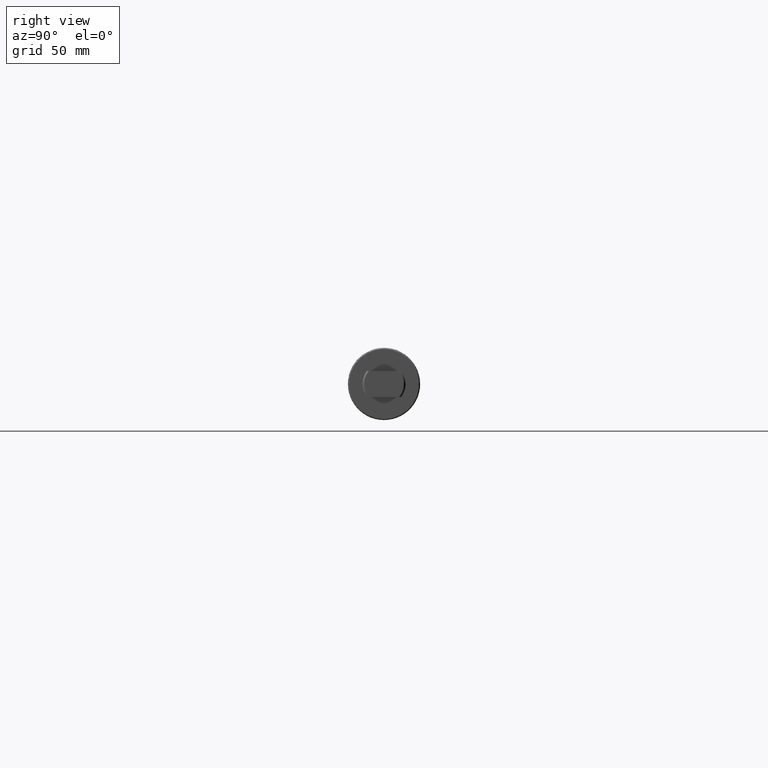
[diagram: clean part render]
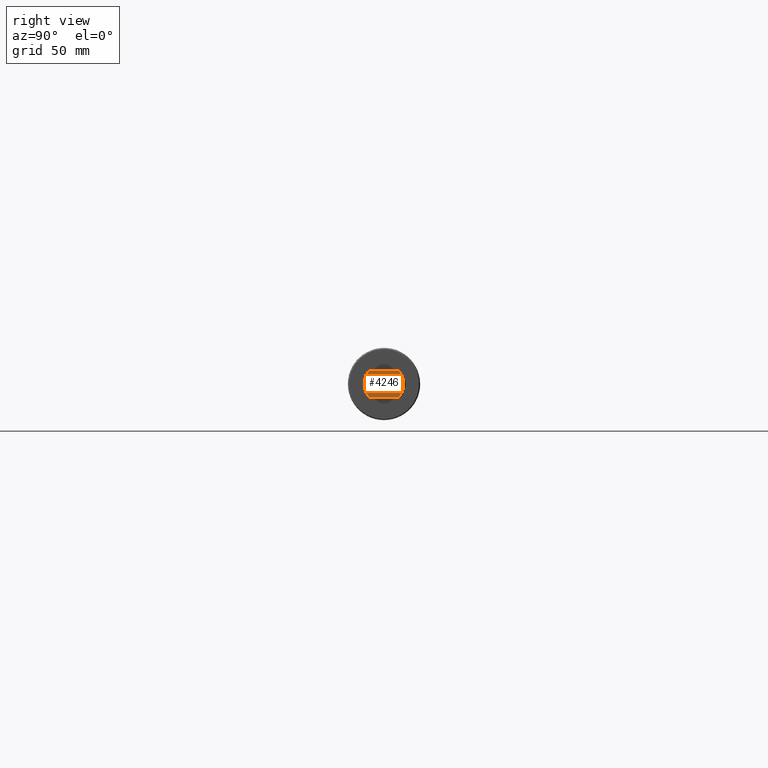
[diagram: same view with one face highlighted and labeled with its STEP entity id]
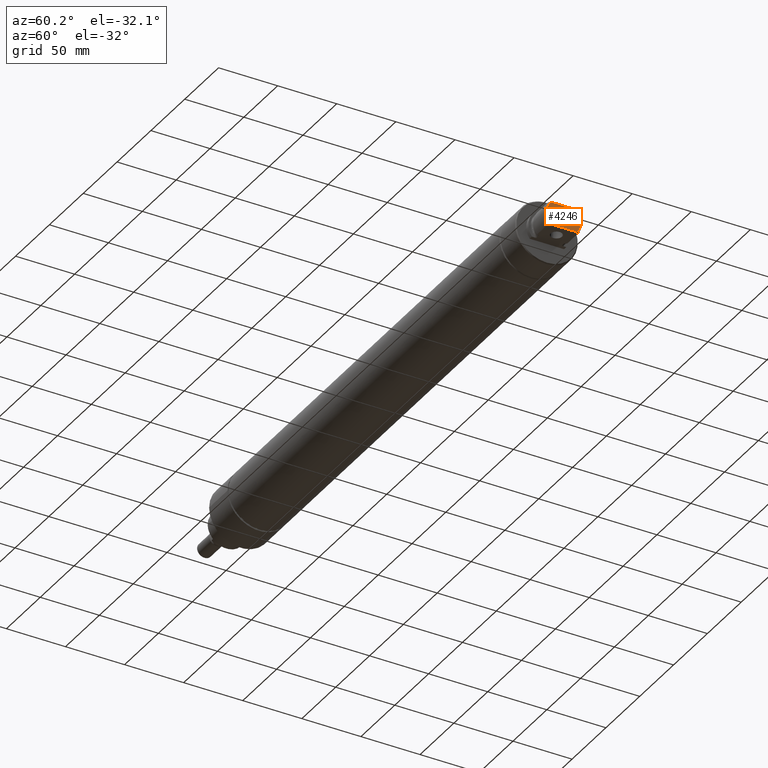
[diagram: same view with one face highlighted and labeled with its STEP entity id]
A machine part, right view. The second image highlights one B-rep face of the part: STEP entity #4246.
A second angle (auxiliary view) of the same face is appended — the face is thin or edge-on in the first view.
In plain terms, the highlighted planar face has unit normal (-1, 0, 0).
Its self-contained STEP definition (entity closure, byte-faithful):
#104 = DIRECTION ( 'NONE',  ( 1.000000000000000000, 0.000000000000000000, 0.000000000000000000 ) ) ;
#422 = DIRECTION ( 'NONE',  ( 0.000000000000000000, 1.000000000000000000, 0.000000000000000000 ) ) ;
#485 = AXIS2_PLACEMENT_3D ( 'NONE', #2274, #2661, #3038 ) ;
#652 = CIRCLE ( 'NONE', #3935, 14.61515999999999948 ) ;
#719 = VECTOR ( 'NONE', #422, 1000.000000000000000 ) ;
#966 = LINE ( 'NONE', #2213, #4584 ) ;
#1368 = CARTESIAN_POINT ( 'NONE',  ( 55.57519999999999527, -11.08500233764522136, -9.525000000000000355 ) ) ;
#1697 = ORIENTED_EDGE ( 'NONE', *, *, #2471, .T. ) ;
#1712 = DIRECTION ( 'NONE',  ( 0.000000000000000000, -1.000000000000000000, 0.000000000000000000 ) ) ;
#1770 = PLANE ( 'NONE',  #485 ) ;
#1802 = CIRCLE ( 'NONE', #4922, 14.61515999999999948 ) ;
#1920 = ORIENTED_EDGE ( 'NONE', *, *, #3662, .F. ) ;
#1947 = CARTESIAN_POINT ( 'NONE',  ( 55.57519999999999527, 0.000000000000000000, 0.000000000000000000 ) ) ;
#2095 = LINE ( 'NONE', #3018, #719 ) ;
#2141 = DIRECTION ( 'NONE',  ( 0.000000000000000000, 0.000000000000000000, -1.000000000000000000 ) ) ;
#2213 = CARTESIAN_POINT ( 'NONE',  ( 55.57519999999999527, 14.61515999999999948, -9.525000000000000355 ) ) ;
#2274 = CARTESIAN_POINT ( 'NONE',  ( 55.57519999999999527, 14.61515999999999948, 0.000000000000000000 ) ) ;
#2336 = EDGE_CURVE ( 'NONE', #5266, #3619, #652, .T. ) ;
#2340 = DIRECTION ( 'NONE',  ( 1.000000000000000000, 0.000000000000000000, 0.000000000000000000 ) ) ;
#2471 = EDGE_CURVE ( 'NONE', #4036, #3458, #1802, .T. ) ;
#2661 = DIRECTION ( 'NONE',  ( -1.000000000000000000, 0.000000000000000000, 0.000000000000000000 ) ) ;
#2753 = DIRECTION ( 'NONE',  ( 0.000000000000000000, 0.000000000000000000, -1.000000000000000000 ) ) ;
#3018 = CARTESIAN_POINT ( 'NONE',  ( 55.57519999999999527, 14.61515999999999948, 9.525000000000000355 ) ) ;
#3038 = DIRECTION ( 'NONE',  ( 0.000000000000000000, 0.000000000000000000, 1.000000000000000000 ) ) ;
#3294 = EDGE_CURVE ( 'NONE', #4036, #3619, #2095, .T. ) ;
#3302 = CARTESIAN_POINT ( 'NONE',  ( 55.57519999999999527, -11.08500233764522136, 9.525000000000000355 ) ) ;
#3458 = VERTEX_POINT ( 'NONE', #1368 ) ;
#3472 = FACE_OUTER_BOUND ( 'NONE', #4772, .T. ) ;
#3619 = VERTEX_POINT ( 'NONE', #4207 ) ;
#3662 = EDGE_CURVE ( 'NONE', #5266, #3458, #966, .T. ) ;
#3838 = CARTESIAN_POINT ( 'NONE',  ( 55.57519999999999527, 0.000000000000000000, 0.000000000000000000 ) ) ;
#3863 = ORIENTED_EDGE ( 'NONE', *, *, #3294, .F. ) ;
#3935 = AXIS2_PLACEMENT_3D ( 'NONE', #3838, #104, #2141 ) ;
#4036 = VERTEX_POINT ( 'NONE', #3302 ) ;
#4207 = CARTESIAN_POINT ( 'NONE',  ( 55.57519999999999527, 11.08500233764522136, 9.525000000000000355 ) ) ;
#4246 = ADVANCED_FACE ( 'NONE', ( #3472 ), #1770, .F. ) ;
#4465 = ORIENTED_EDGE ( 'NONE', *, *, #2336, .T. ) ;
#4584 = VECTOR ( 'NONE', #1712, 1000.000000000000000 ) ;
#4660 = CARTESIAN_POINT ( 'NONE',  ( 55.57519999999999527, 11.08500233764522136, -9.525000000000000355 ) ) ;
#4772 = EDGE_LOOP ( 'NONE', ( #3863, #1697, #1920, #4465 ) ) ;
#4922 = AXIS2_PLACEMENT_3D ( 'NONE', #1947, #2340, #2753 ) ;
#5266 = VERTEX_POINT ( 'NONE', #4660 ) ;